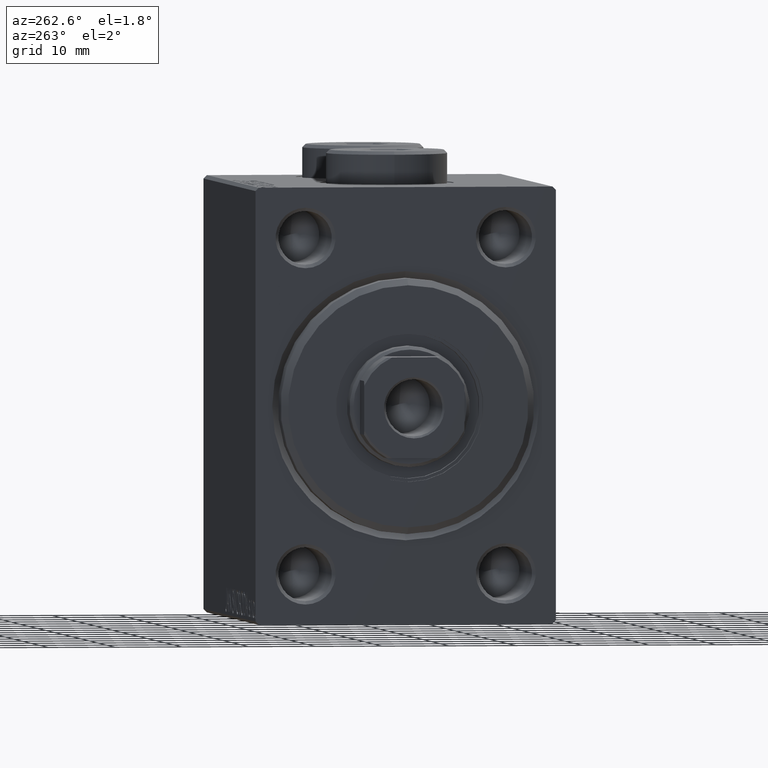
[diagram: clean part render]
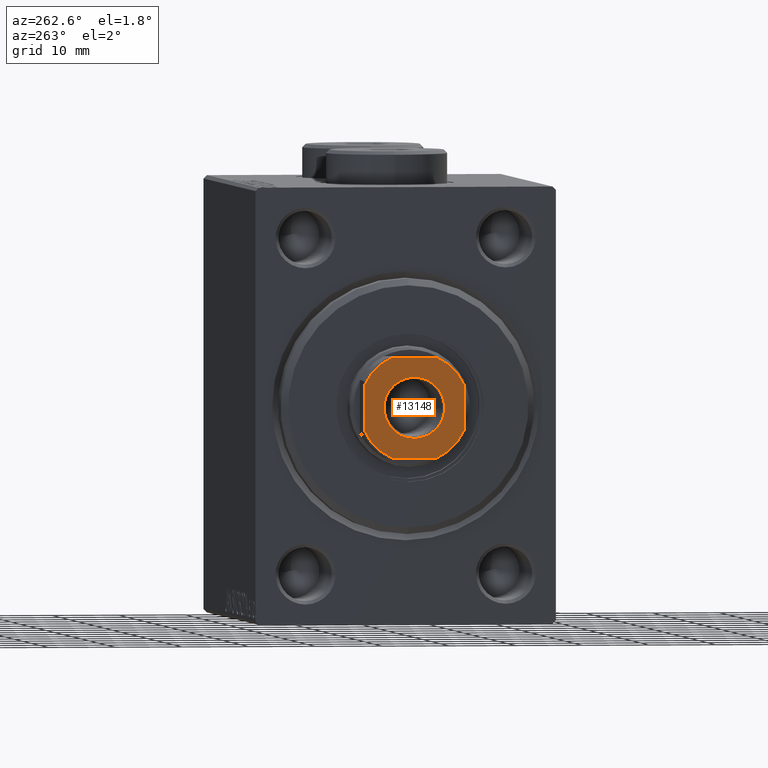
[diagram: same view with one face highlighted and labeled with its STEP entity id]
A machine part, auxiliary view. The second image highlights one B-rep face of the part: STEP entity #13148.
In plain terms, the highlighted planar face has unit normal (-1, 0, 0).
Its self-contained STEP definition (entity closure, byte-faithful):
#53 = VECTOR ( 'NONE', #15258, 1000.000000000000000 ) ;
#463 = DIRECTION ( 'NONE',  ( 1.000000000000000000, 0.000000000000000000, 0.000000000000000000 ) ) ;
#979 = LINE ( 'NONE', #32775, #53 ) ;
#1401 = EDGE_CURVE ( 'NONE', #13962, #32582, #36478, .T. ) ;
#2143 = ORIENTED_EDGE ( 'NONE', *, *, #14355, .T. ) ;
#3190 = DIRECTION ( 'NONE',  ( 1.000000000000000000, 0.000000000000000000, 0.000000000000000000 ) ) ;
#3961 = CIRCLE ( 'NONE', #28911, 4.549999999999991829 ) ;
#4094 = DIRECTION ( 'NONE',  ( 0.000000000000000000, -0.000000000000000000, -1.000000000000000000 ) ) ;
#4708 = DIRECTION ( 'NONE',  ( 1.000000000000000000, 0.000000000000000000, 0.000000000000000000 ) ) ;
#5815 = ORIENTED_EDGE ( 'NONE', *, *, #29694, .T. ) ;
#6186 = FACE_BOUND ( 'NONE', #9498, .T. ) ;
#6252 = DIRECTION ( 'NONE',  ( -0.000000000000000000, 0.000000000000000000, 1.000000000000000000 ) ) ;
#7276 = ORIENTED_EDGE ( 'NONE', *, *, #32823, .T. ) ;
#7377 = AXIS2_PLACEMENT_3D ( 'NONE', #44288, #6252, #33693 ) ;
#7549 = CARTESIAN_POINT ( 'NONE',  ( 0.000000000000000000, 0.000000000000000000, 60.99999999999999289 ) ) ;
#7922 = ORIENTED_EDGE ( 'NONE', *, *, #31870, .T. ) ;
#9052 = ORIENTED_EDGE ( 'NONE', *, *, #41867, .T. ) ;
#9397 = CARTESIAN_POINT ( 'NONE',  ( 0.000000000000000000, 0.000000000000000000, 60.99999999999999289 ) ) ;
#9498 = EDGE_LOOP ( 'NONE', ( #9052, #14357 ) ) ;
#10099 = CARTESIAN_POINT ( 'NONE',  ( -4.549999999999991829, 5.572142936120446480E-16, 60.99999999999999289 ) ) ;
#10119 = DIRECTION ( 'NONE',  ( -1.000000000000000000, 5.782411586589357392E-17, -0.000000000000000000 ) ) ;
#10239 = LINE ( 'NONE', #23627, #20112 ) ;
#11062 = CARTESIAN_POINT ( 'NONE',  ( 0.000000000000000000, 0.000000000000000000, 60.99999999999999289 ) ) ;
#11405 = VERTEX_POINT ( 'NONE', #41678 ) ;
#11621 = CARTESIAN_POINT ( 'NONE',  ( 0.000000000000000000, 0.000000000000000000, 60.99999999999999289 ) ) ;
#11856 = DIRECTION ( 'NONE',  ( 1.734723475976807094E-16, -1.000000000000000000, 0.000000000000000000 ) ) ;
#11921 = AXIS2_PLACEMENT_3D ( 'NONE', #11621, #37188, #4708 ) ;
#12546 = CIRCLE ( 'NONE', #7377, 8.200000000000002842 ) ;
#13148 = ADVANCED_FACE ( 'NONE', ( #6186, #38675 ), #14013, .T. ) ;
#13192 = VERTEX_POINT ( 'NONE', #10099 ) ;
#13747 = CARTESIAN_POINT ( 'NONE',  ( -7.499999999999999112, -3.315116890850132059, 60.99999999999999289 ) ) ;
#13962 = VERTEX_POINT ( 'NONE', #28679 ) ;
#14013 = PLANE ( 'NONE',  #44058 ) ;
#14116 = VERTEX_POINT ( 'NONE', #27034 ) ;
#14355 = EDGE_CURVE ( 'NONE', #44069, #14116, #27185, .T. ) ;
#14357 = ORIENTED_EDGE ( 'NONE', *, *, #16341, .T. ) ;
#15258 = DIRECTION ( 'NONE',  ( -1.156482317317871478E-16, 1.000000000000000000, -0.000000000000000000 ) ) ;
#16341 = EDGE_CURVE ( 'NONE', #13192, #17080, #41917, .T. ) ;
#16367 = CARTESIAN_POINT ( 'NONE',  ( 3.315116890850187570, -7.499999999999996447, 60.99999999999999289 ) ) ;
#16538 = DIRECTION ( 'NONE',  ( -0.000000000000000000, 0.000000000000000000, 1.000000000000000000 ) ) ;
#17080 = VERTEX_POINT ( 'NONE', #20029 ) ;
#17632 = AXIS2_PLACEMENT_3D ( 'NONE', #9397, #16538, #33824 ) ;
#17933 = DIRECTION ( 'NONE',  ( 1.000000000000000000, 0.000000000000000000, 0.000000000000000000 ) ) ;
#18023 = EDGE_CURVE ( 'NONE', #14116, #13962, #979, .T. ) ;
#20029 = CARTESIAN_POINT ( 'NONE',  ( 4.549999999999991829, 0.000000000000000000, 60.99999999999999289 ) ) ;
#20112 = VECTOR ( 'NONE', #20175, 1000.000000000000000 ) ;
#20175 = DIRECTION ( 'NONE',  ( 1.000000000000000000, 0.000000000000000000, 0.000000000000000000 ) ) ;
#20776 = EDGE_LOOP ( 'NONE', ( #34171, #24209, #7276, #7922, #5815, #41036, #30469, #2143 ) ) ;
#21176 = DIRECTION ( 'NONE',  ( -0.000000000000000000, 0.000000000000000000, 1.000000000000000000 ) ) ;
#22531 = DIRECTION ( 'NONE',  ( -0.000000000000000000, 0.000000000000000000, 1.000000000000000000 ) ) ;
#23627 = CARTESIAN_POINT ( 'NONE',  ( -7.499999999999999112, -7.499999999999998224, 60.99999999999999289 ) ) ;
#24209 = ORIENTED_EDGE ( 'NONE', *, *, #1401, .T. ) ;
#24636 = VERTEX_POINT ( 'NONE', #24744 ) ;
#24744 = CARTESIAN_POINT ( 'NONE',  ( -3.315116890850136500, -7.499999999999998224, 60.99999999999999289 ) ) ;
#25765 = AXIS2_PLACEMENT_3D ( 'NONE', #7549, #4094, #17933 ) ;
#27034 = CARTESIAN_POINT ( 'NONE',  ( 7.499999999999998224, -3.315116890850184461, 60.99999999999999289 ) ) ;
#27185 = CIRCLE ( 'NONE', #17632, 8.200000000000011724 ) ;
#28679 = CARTESIAN_POINT ( 'NONE',  ( 7.499999999999998224, 3.315116890850154263, 60.99999999999999289 ) ) ;
#28911 = AXIS2_PLACEMENT_3D ( 'NONE', #11062, #43302, #463 ) ;
#29694 = EDGE_CURVE ( 'NONE', #44986, #38641, #43196, .T. ) ;
#30469 = ORIENTED_EDGE ( 'NONE', *, *, #39754, .T. ) ;
#31360 = AXIS2_PLACEMENT_3D ( 'NONE', #39583, #22531, #36581 ) ;
#31870 = EDGE_CURVE ( 'NONE', #11405, #44986, #12546, .T. ) ;
#32582 = VERTEX_POINT ( 'NONE', #38750 ) ;
#32756 = CARTESIAN_POINT ( 'NONE',  ( -7.500000000000000888, 3.315116890850160036, 60.99999999999999289 ) ) ;
#32775 = CARTESIAN_POINT ( 'NONE',  ( 7.499999999999997335, 7.500000000000000888, 60.99999999999999289 ) ) ;
#32823 = EDGE_CURVE ( 'NONE', #32582, #11405, #35014, .T. ) ;
#33693 = DIRECTION ( 'NONE',  ( 1.000000000000000000, 0.000000000000000000, 0.000000000000000000 ) ) ;
#33824 = DIRECTION ( 'NONE',  ( 1.000000000000000000, 0.000000000000000000, 0.000000000000000000 ) ) ;
#34171 = ORIENTED_EDGE ( 'NONE', *, *, #18023, .T. ) ;
#35014 = LINE ( 'NONE', #41689, #39060 ) ;
#35615 = CARTESIAN_POINT ( 'NONE',  ( -7.500000000000001776, 7.500000000000001776, 60.99999999999999289 ) ) ;
#36217 = EDGE_CURVE ( 'NONE', #38641, #24636, #38431, .T. ) ;
#36478 = CIRCLE ( 'NONE', #31360, 8.199999999999997513 ) ;
#36581 = DIRECTION ( 'NONE',  ( 1.000000000000000000, 0.000000000000000000, 0.000000000000000000 ) ) ;
#37188 = DIRECTION ( 'NONE',  ( -0.000000000000000000, 0.000000000000000000, 1.000000000000000000 ) ) ;
#37488 = VECTOR ( 'NONE', #11856, 1000.000000000000000 ) ;
#38431 = CIRCLE ( 'NONE', #11921, 8.199999999999990408 ) ;
#38641 = VERTEX_POINT ( 'NONE', #13747 ) ;
#38675 = FACE_OUTER_BOUND ( 'NONE', #20776, .T. ) ;
#38750 = CARTESIAN_POINT ( 'NONE',  ( 3.315116890850148934, 7.500000000000000888, 60.99999999999999289 ) ) ;
#39060 = VECTOR ( 'NONE', #10119, 1000.000000000000000 ) ;
#39583 = CARTESIAN_POINT ( 'NONE',  ( 0.000000000000000000, 0.000000000000000000, 60.99999999999999289 ) ) ;
#39754 = EDGE_CURVE ( 'NONE', #24636, #44069, #10239, .T. ) ;
#41036 = ORIENTED_EDGE ( 'NONE', *, *, #36217, .T. ) ;
#41678 = CARTESIAN_POINT ( 'NONE',  ( -3.315116890850159148, 7.500000000000000888, 60.99999999999999289 ) ) ;
#41689 = CARTESIAN_POINT ( 'NONE',  ( -7.500000000000001776, 7.500000000000001776, 60.99999999999999289 ) ) ;
#41867 = EDGE_CURVE ( 'NONE', #17080, #13192, #3961, .T. ) ;
#41917 = CIRCLE ( 'NONE', #25765, 4.549999999999991829 ) ;
#42126 = CARTESIAN_POINT ( 'NONE',  ( 0.000000000000000000, 0.000000000000000000, 60.99999999999999289 ) ) ;
#43196 = LINE ( 'NONE', #35615, #37488 ) ;
#43302 = DIRECTION ( 'NONE',  ( 0.000000000000000000, -0.000000000000000000, -1.000000000000000000 ) ) ;
#44058 = AXIS2_PLACEMENT_3D ( 'NONE', #42126, #21176, #3190 ) ;
#44069 = VERTEX_POINT ( 'NONE', #16367 ) ;
#44288 = CARTESIAN_POINT ( 'NONE',  ( 0.000000000000000000, 0.000000000000000000, 60.99999999999999289 ) ) ;
#44986 = VERTEX_POINT ( 'NONE', #32756 ) ;